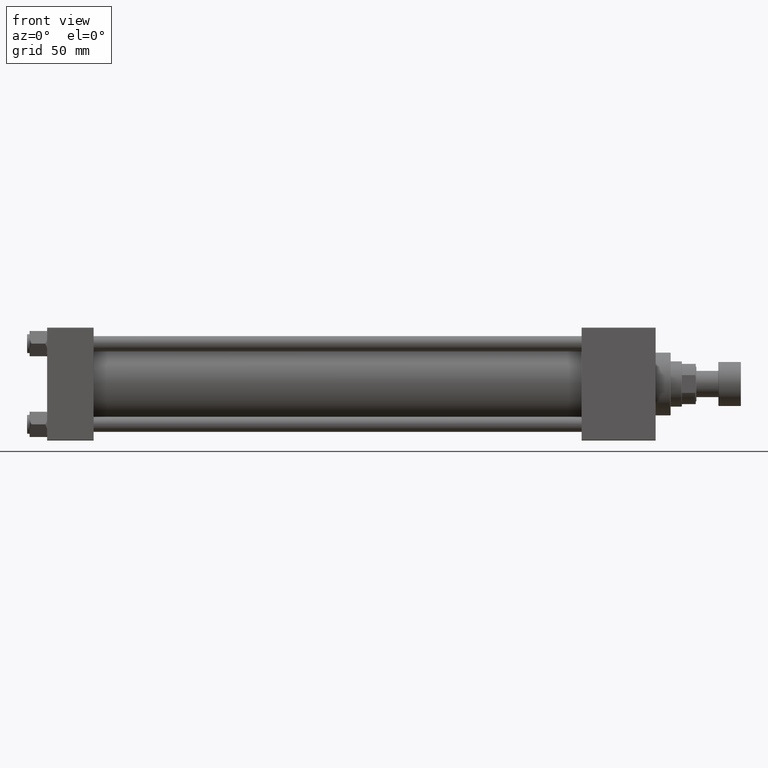
[diagram: clean part render]
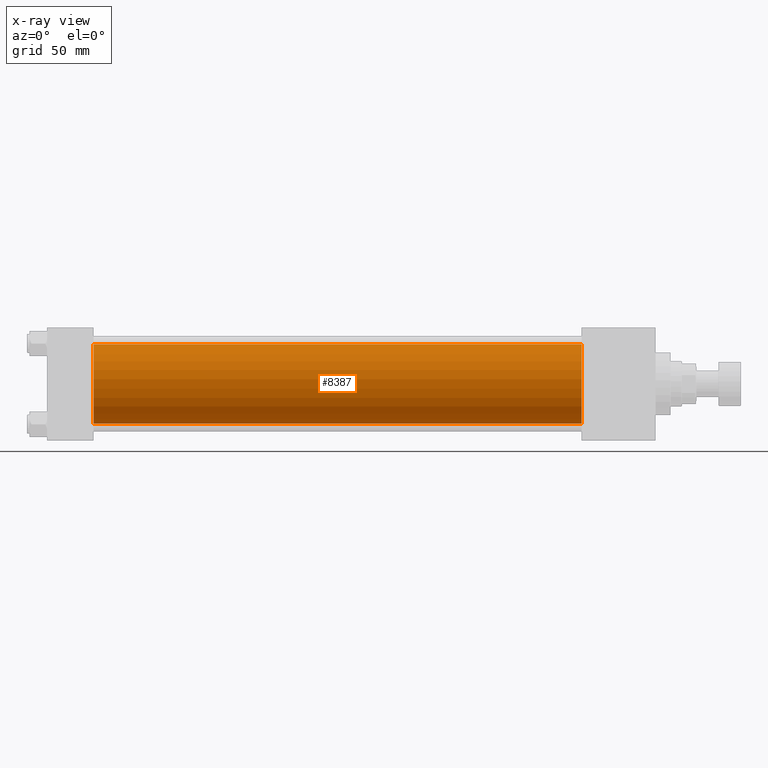
[diagram: x-ray — body ghosted, one internal face saturated and labeled with its STEP entity id]
A machine part, front view, then the same camera in x-ray: the body is ghosted and one INTERNAL B-rep face — a face not visible from any outside direction — is saturated and labeled: STEP entity #8387.
In plain terms, the highlighted cylindrical surface (partial cylindrical patch) has radius 31.5 mm, axis along (-1, -0, -0).
Its self-contained STEP definition (entity closure, byte-faithful):
#875 = DIRECTION ( 'NONE',  ( 1.000000000000000000, 0.000000000000000000, 0.000000000000000000 ) ) ;
#2984 = VECTOR ( 'NONE', #32723, 1000.000000000000000 ) ;
#3421 = EDGE_CURVE ( 'NONE', #50133, #35763, #25528, .T. ) ;
#5081 = CARTESIAN_POINT ( 'NONE',  ( 426.0000000000000000, -2.602085213965210642E-15, 0.000000000000000000 ) ) ;
#7276 = DIRECTION ( 'NONE',  ( 0.000000000000000000, 0.000000000000000000, 1.000000000000000000 ) ) ;
#8387 = ADVANCED_FACE ( 'NONE', ( #41860 ), #14463, .F. ) ;
#9685 = DIRECTION ( 'NONE',  ( 1.000000000000000000, 0.000000000000000000, 0.000000000000000000 ) ) ;
#12158 = DIRECTION ( 'NONE',  ( 0.000000000000000000, 0.000000000000000000, -1.000000000000000000 ) ) ;
#13759 = CARTESIAN_POINT ( 'NONE',  ( 426.0000000000000000, 1.255552203348951850E-15, -31.50000000000000000 ) ) ;
#14463 = CYLINDRICAL_SURFACE ( 'NONE', #23954, 31.50000000000000000 ) ;
#15960 = DIRECTION ( 'NONE',  ( -1.000000000000000000, -0.000000000000000000, -0.000000000000000000 ) ) ;
#16316 = EDGE_CURVE ( 'NONE', #35763, #23570, #33476, .T. ) ;
#17390 = AXIS2_PLACEMENT_3D ( 'NONE', #5081, #9685, #20186 ) ;
#17935 = CARTESIAN_POINT ( 'NONE',  ( 426.0000000000000000, 1.255552203348951850E-15, -31.50000000000000000 ) ) ;
#19816 = CARTESIAN_POINT ( 'NONE',  ( 37.00000000000000000, 1.255552203348951850E-15, -31.50000000000000000 ) ) ;
#20186 = DIRECTION ( 'NONE',  ( 0.000000000000000000, 0.000000000000000000, -1.000000000000000000 ) ) ;
#21371 = LINE ( 'NONE', #41336, #32717 ) ;
#22075 = AXIS2_PLACEMENT_3D ( 'NONE', #28784, #875, #12158 ) ;
#23570 = VERTEX_POINT ( 'NONE', #19816 ) ;
#23713 = CIRCLE ( 'NONE', #22075, 31.50000000000000000 ) ;
#23954 = AXIS2_PLACEMENT_3D ( 'NONE', #30062, #15960, #7276 ) ;
#25528 = CIRCLE ( 'NONE', #17390, 31.50000000000000000 ) ;
#25743 = ORIENTED_EDGE ( 'NONE', *, *, #50530, .F. ) ;
#27301 = ORIENTED_EDGE ( 'NONE', *, *, #16316, .T. ) ;
#28784 = CARTESIAN_POINT ( 'NONE',  ( 37.00000000000000000, -2.602085213965210642E-15, 0.000000000000000000 ) ) ;
#29136 = CARTESIAN_POINT ( 'NONE',  ( 37.00000000000000000, -2.602085213965210642E-15, 31.50000000000000000 ) ) ;
#29148 = ORIENTED_EDGE ( 'NONE', *, *, #3421, .T. ) ;
#30049 = DIRECTION ( 'NONE',  ( -1.000000000000000000, -0.000000000000000000, -0.000000000000000000 ) ) ;
#30062 = CARTESIAN_POINT ( 'NONE',  ( 426.0000000000000000, -2.602085213965210642E-15, 0.000000000000000000 ) ) ;
#32455 = CARTESIAN_POINT ( 'NONE',  ( 426.0000000000000000, -2.602085213965210642E-15, 31.50000000000000000 ) ) ;
#32639 = EDGE_LOOP ( 'NONE', ( #29148, #27301, #39345, #25743 ) ) ;
#32717 = VECTOR ( 'NONE', #30049, 1000.000000000000000 ) ;
#32723 = DIRECTION ( 'NONE',  ( -1.000000000000000000, -0.000000000000000000, -0.000000000000000000 ) ) ;
#33476 = LINE ( 'NONE', #13759, #2984 ) ;
#35763 = VERTEX_POINT ( 'NONE', #17935 ) ;
#39345 = ORIENTED_EDGE ( 'NONE', *, *, #42539, .F. ) ;
#41336 = CARTESIAN_POINT ( 'NONE',  ( 426.0000000000000000, -2.602085213965210642E-15, 31.50000000000000000 ) ) ;
#41860 = FACE_OUTER_BOUND ( 'NONE', #32639, .T. ) ;
#42539 = EDGE_CURVE ( 'NONE', #48453, #23570, #23713, .T. ) ;
#48453 = VERTEX_POINT ( 'NONE', #29136 ) ;
#50133 = VERTEX_POINT ( 'NONE', #32455 ) ;
#50530 = EDGE_CURVE ( 'NONE', #50133, #48453, #21371, .T. ) ;